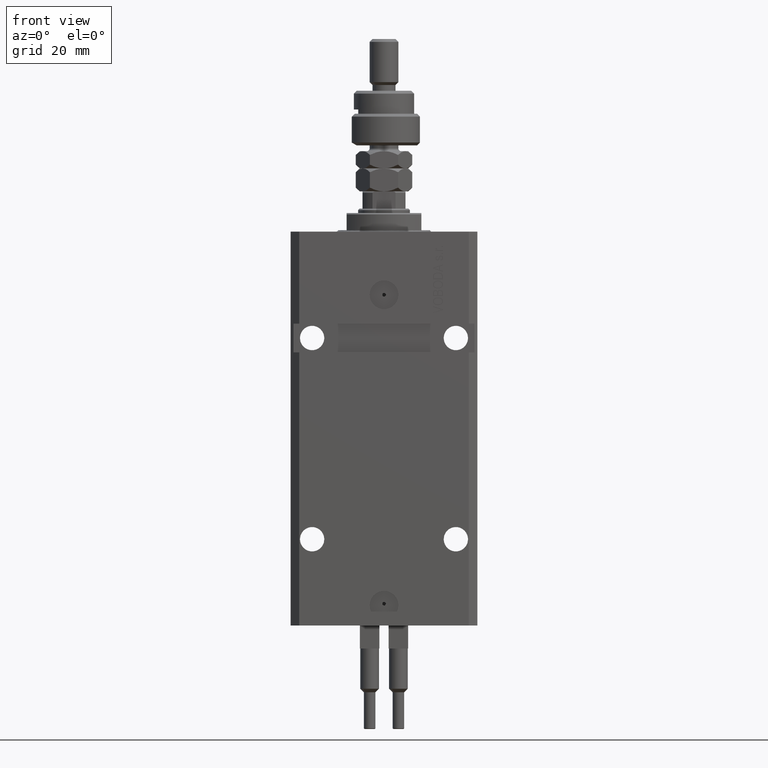
[diagram: clean part render]
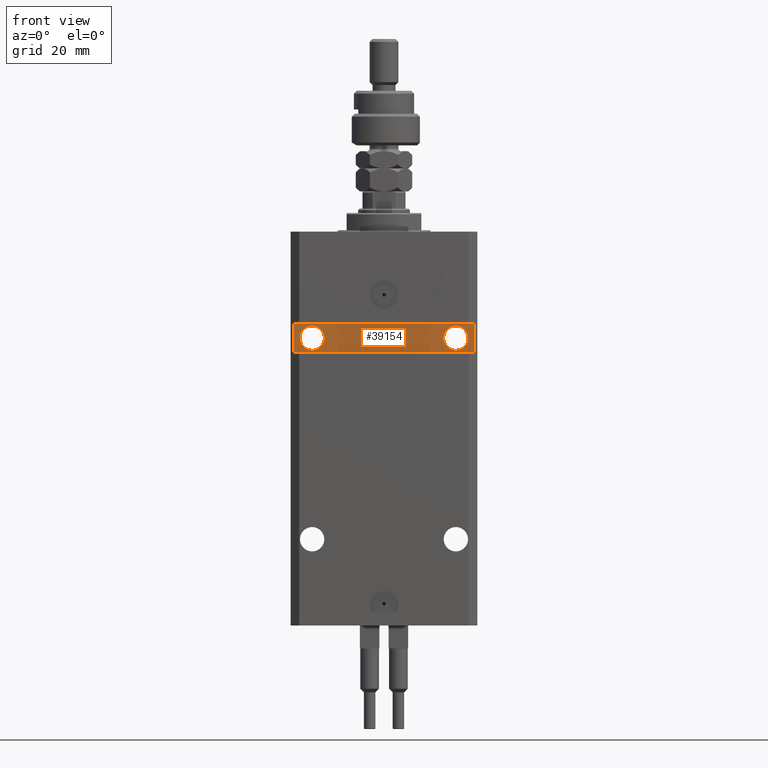
[diagram: same view with one face highlighted and labeled with its STEP entity id]
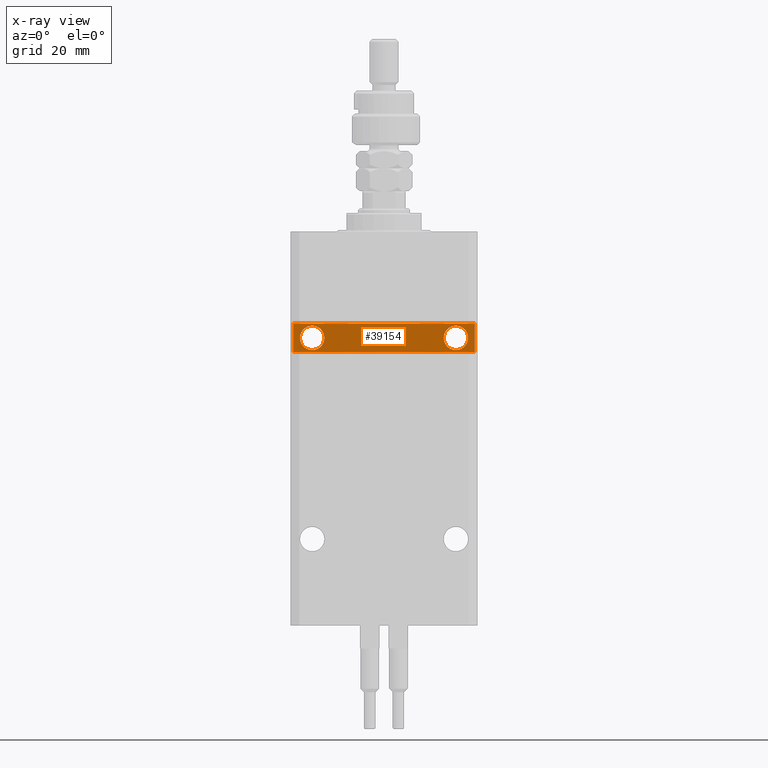
[diagram: x-ray of the same camera — body ghosted, the highlighted face saturated]
A machine part, front view. The second image highlights one B-rep face of the part: STEP entity #39154.
The next image is the same camera in x-ray: the body ghosted, the highlighted face saturated — about 0% of this face is hidden behind the body in this view.
In plain terms, the highlighted planar face has unit normal (0, -1, 0).
Its self-contained STEP definition (entity closure, byte-faithful):
#1341 = EDGE_LOOP ( 'NONE', ( #5298, #34127, #12824, #47346 ) ) ;
#1813 = EDGE_CURVE ( 'NONE', #20894, #9305, #48985, .T. ) ;
#1849 = CARTESIAN_POINT ( 'NONE',  ( -24.99999999999999289, -20.49999999999950262, -37.00000000000000000 ) ) ;
#2119 = DIRECTION ( 'NONE',  ( 0.000000000000000000, 0.000000000000000000, 1.000000000000000000 ) ) ;
#2467 = DIRECTION ( 'NONE',  ( 1.067522139062765303E-16, -1.000000000000000000, 0.000000000000000000 ) ) ;
#3093 = AXIS2_PLACEMENT_3D ( 'NONE', #43575, #8042, #20731 ) ;
#3361 = CARTESIAN_POINT ( 'NONE',  ( 31.49999999999651124, -20.49999999999949551, -137.0000000000000000 ) ) ;
#3949 = EDGE_CURVE ( 'NONE', #20419, #9552, #47851, .T. ) ;
#4072 = CARTESIAN_POINT ( 'NONE',  ( -31.49999999999650413, -20.49999999999950262, -32.00000000000000000 ) ) ;
#5000 = AXIS2_PLACEMENT_3D ( 'NONE', #26080, #2467, #37515 ) ;
#5298 = ORIENTED_EDGE ( 'NONE', *, *, #48266, .T. ) ;
#6107 = PLANE ( 'NONE',  #5000 ) ;
#6525 = EDGE_LOOP ( 'NONE', ( #45328, #44892 ) ) ;
#8042 = DIRECTION ( 'NONE',  ( 1.394545208792185644E-16, -1.000000000000000000, 1.232595164407830946E-32 ) ) ;
#8333 = VECTOR ( 'NONE', #20697, 1000.000000000000000 ) ;
#9305 = VERTEX_POINT ( 'NONE', #45557 ) ;
#9321 = CARTESIAN_POINT ( 'NONE',  ( -31.49999999999650413, -20.49999999999949907, -41.99999999999999289 ) ) ;
#9552 = VERTEX_POINT ( 'NONE', #45698 ) ;
#10972 = EDGE_CURVE ( 'NONE', #30964, #9305, #18924, .T. ) ;
#12824 = ORIENTED_EDGE ( 'NONE', *, *, #1813, .T. ) ;
#12858 = ORIENTED_EDGE ( 'NONE', *, *, #14764, .F. ) ;
#13641 = FACE_BOUND ( 'NONE', #42579, .T. ) ;
#13999 = AXIS2_PLACEMENT_3D ( 'NONE', #1849, #21052, #31516 ) ;
#14764 = EDGE_CURVE ( 'NONE', #19028, #45903, #50672, .T. ) ;
#17068 = CARTESIAN_POINT ( 'NONE',  ( -32.49999999999650413, -20.49999999999949907, -41.99999999999999289 ) ) ;
#18298 = FACE_BOUND ( 'NONE', #6525, .T. ) ;
#18924 = LINE ( 'NONE', #3361, #37247 ) ;
#19028 = VERTEX_POINT ( 'NONE', #49170 ) ;
#19184 = DIRECTION ( 'NONE',  ( 0.000000000000000000, 0.000000000000000000, -1.000000000000000000 ) ) ;
#20085 = CARTESIAN_POINT ( 'NONE',  ( 31.49999999999651124, -20.49999999999949196, -32.00000000000000711 ) ) ;
#20419 = VERTEX_POINT ( 'NONE', #31812 ) ;
#20697 = DIRECTION ( 'NONE',  ( -1.000000000000000000, -1.067522139062765303E-16, 1.067522139062765303E-16 ) ) ;
#20731 = DIRECTION ( 'NONE',  ( 1.000000000000000000, 0.000000000000000000, 0.000000000000000000 ) ) ;
#20894 = VERTEX_POINT ( 'NONE', #9321 ) ;
#20897 = EDGE_CURVE ( 'NONE', #9552, #20419, #26920, .T. ) ;
#20978 = DIRECTION ( 'NONE',  ( 1.394545208792185644E-16, -1.000000000000000000, 1.232595164407830946E-32 ) ) ;
#21052 = DIRECTION ( 'NONE',  ( 1.101411730780568590E-16, -1.000000000000000000, 0.000000000000000000 ) ) ;
#23068 = DIRECTION ( 'NONE',  ( 1.000000000000000000, 0.000000000000000000, 0.000000000000000000 ) ) ;
#24328 = LINE ( 'NONE', #24841, #8333 ) ;
#24841 = CARTESIAN_POINT ( 'NONE',  ( 32.49999999999650413, -20.49999999999949196, -32.00000000000000711 ) ) ;
#25123 = DIRECTION ( 'NONE',  ( 1.000000000000000000, 0.000000000000000000, 0.000000000000000000 ) ) ;
#25381 = CARTESIAN_POINT ( 'NONE',  ( 25.00000000000000711, -20.49999999999949551, -36.99999999999999289 ) ) ;
#26080 = CARTESIAN_POINT ( 'NONE',  ( 2.166708070385810581E-15, -20.49999999999949907, 0.000000000000000000 ) ) ;
#26250 = VECTOR ( 'NONE', #48226, 1000.000000000000000 ) ;
#26920 = CIRCLE ( 'NONE', #30215, 4.249999999989050536 ) ;
#27235 = CIRCLE ( 'NONE', #13999, 4.249999999993782751 ) ;
#29850 = CARTESIAN_POINT ( 'NONE',  ( -24.99999999999999289, -20.49999999999950262, -37.00000000000000000 ) ) ;
#30215 = AXIS2_PLACEMENT_3D ( 'NONE', #25381, #20978, #25123 ) ;
#30964 = VERTEX_POINT ( 'NONE', #20085 ) ;
#31516 = DIRECTION ( 'NONE',  ( 1.000000000000000000, 0.000000000000000000, 0.000000000000000000 ) ) ;
#31734 = VERTEX_POINT ( 'NONE', #4072 ) ;
#31812 = CARTESIAN_POINT ( 'NONE',  ( 20.75000000001095657, -20.49999999999949551, -36.99999999999999289 ) ) ;
#32174 = EDGE_CURVE ( 'NONE', #45903, #19028, #27235, .T. ) ;
#32744 = ORIENTED_EDGE ( 'NONE', *, *, #32174, .F. ) ;
#34127 = ORIENTED_EDGE ( 'NONE', *, *, #47040, .F. ) ;
#35635 = VECTOR ( 'NONE', #2119, 1000.000000000000000 ) ;
#37247 = VECTOR ( 'NONE', #19184, 1000.000000000000000 ) ;
#37515 = DIRECTION ( 'NONE',  ( 1.000000000000000000, 1.067522139062765303E-16, 0.000000000000000000 ) ) ;
#37681 = CARTESIAN_POINT ( 'NONE',  ( -31.49999999999650413, -20.49999999999950262, -137.0000000000000000 ) ) ;
#38297 = CARTESIAN_POINT ( 'NONE',  ( -29.24999999999377920, -20.49999999999950262, -37.00000000000000000 ) ) ;
#39154 = ADVANCED_FACE ( 'NONE', ( #18298, #13641, #41659 ), #6107, .T. ) ;
#41659 = FACE_OUTER_BOUND ( 'NONE', #1341, .T. ) ;
#42333 = LINE ( 'NONE', #37681, #35635 ) ;
#42579 = EDGE_LOOP ( 'NONE', ( #12858, #32744 ) ) ;
#43575 = CARTESIAN_POINT ( 'NONE',  ( 25.00000000000000711, -20.49999999999949551, -36.99999999999999289 ) ) ;
#44892 = ORIENTED_EDGE ( 'NONE', *, *, #3949, .F. ) ;
#45328 = ORIENTED_EDGE ( 'NONE', *, *, #20897, .F. ) ;
#45557 = CARTESIAN_POINT ( 'NONE',  ( 31.49999999999650413, -20.49999999999949196, -41.99999999999998579 ) ) ;
#45680 = DIRECTION ( 'NONE',  ( 1.101411730780568590E-16, -1.000000000000000000, 0.000000000000000000 ) ) ;
#45698 = CARTESIAN_POINT ( 'NONE',  ( 29.24999999998905764, -20.49999999999949551, -36.99999999999999289 ) ) ;
#45903 = VERTEX_POINT ( 'NONE', #38297 ) ;
#47040 = EDGE_CURVE ( 'NONE', #20894, #31734, #42333, .T. ) ;
#47346 = ORIENTED_EDGE ( 'NONE', *, *, #10972, .F. ) ;
#47851 = CIRCLE ( 'NONE', #3093, 4.249999999989050536 ) ;
#48140 = AXIS2_PLACEMENT_3D ( 'NONE', #29850, #45680, #23068 ) ;
#48226 = DIRECTION ( 'NONE',  ( 1.000000000000000000, 1.067522139062765303E-16, 1.067522139062765303E-16 ) ) ;
#48266 = EDGE_CURVE ( 'NONE', #30964, #31734, #24328, .T. ) ;
#48985 = LINE ( 'NONE', #17068, #26250 ) ;
#49170 = CARTESIAN_POINT ( 'NONE',  ( -20.75000000000621014, -20.49999999999950262, -37.00000000000000000 ) ) ;
#50672 = CIRCLE ( 'NONE', #48140, 4.249999999993782751 ) ;